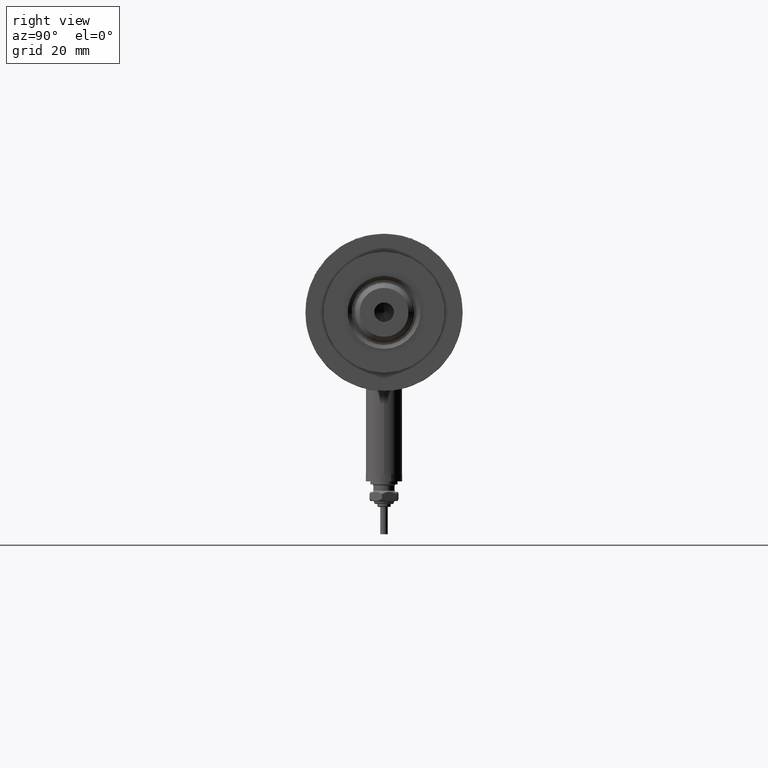
[diagram: clean part render]
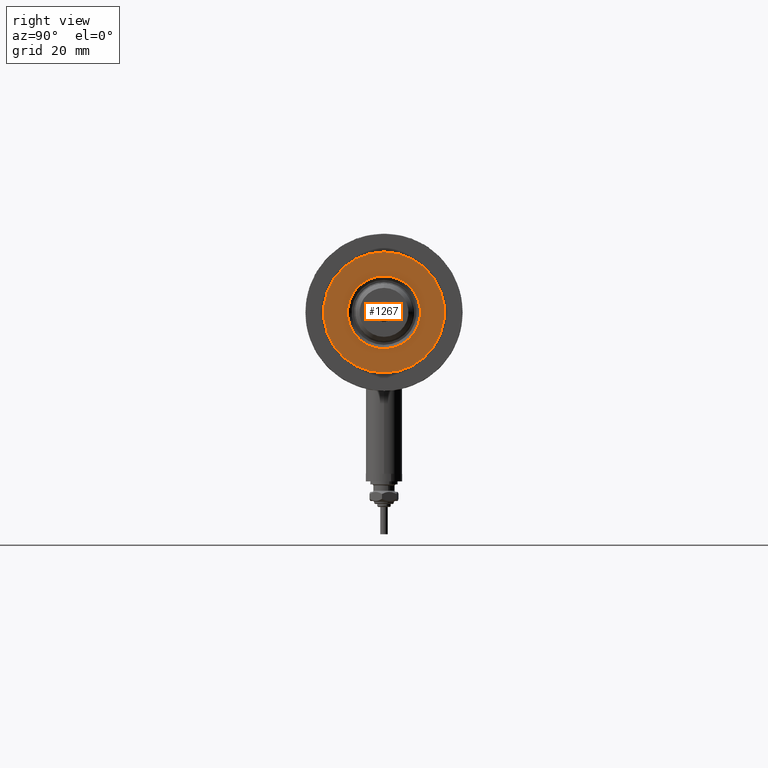
[diagram: same view with one face highlighted and labeled with its STEP entity id]
A machine part, right view. The second image highlights one B-rep face of the part: STEP entity #1267.
In plain terms, the highlighted planar face has unit normal (1, 0, -0).
Its self-contained STEP definition (entity closure, byte-faithful):
#476 = DIRECTION ( 'NONE',  ( -0.000000000000000000, -0.000000000000000000, -1.000000000000000000 ) ) ;
#496 = CARTESIAN_POINT ( 'NONE',  ( 0.000000000000000000, 0.000000000000000000, 33.50000000000000000 ) ) ;
#682 = DIRECTION ( 'NONE',  ( 1.000000000000000000, 0.000000000000000000, 0.000000000000000000 ) ) ;
#760 = EDGE_CURVE ( 'NONE', #2345, #4958, #3474, .T. ) ;
#778 = CARTESIAN_POINT ( 'NONE',  ( 0.000000000000000000, 0.000000000000000000, 33.50000000000000000 ) ) ;
#1166 = CARTESIAN_POINT ( 'NONE',  ( 0.000000000000000000, 0.000000000000000000, 33.50000000000000000 ) ) ;
#1203 = CARTESIAN_POINT ( 'NONE',  ( -19.99999999999999645, 0.000000000000000000, 33.50000000000000000 ) ) ;
#1267 = ADVANCED_FACE ( 'NONE', ( #2788, #5833 ), #3418, .T. ) ;
#1523 = EDGE_LOOP ( 'NONE', ( #6174, #3178 ) ) ;
#1622 = AXIS2_PLACEMENT_3D ( 'NONE', #778, #5166, #4651 ) ;
#1943 = VERTEX_POINT ( 'NONE', #2177 ) ;
#1970 = VERTEX_POINT ( 'NONE', #4113 ) ;
#2019 = EDGE_CURVE ( 'NONE', #1943, #1970, #5727, .T. ) ;
#2073 = AXIS2_PLACEMENT_3D ( 'NONE', #5783, #476, #5844 ) ;
#2109 = CARTESIAN_POINT ( 'NONE',  ( 0.000000000000000000, 0.000000000000000000, 33.50000000000000000 ) ) ;
#2177 = CARTESIAN_POINT ( 'NONE',  ( 12.05000000000000426, 0.000000000000000000, 33.50000000000000000 ) ) ;
#2256 = CIRCLE ( 'NONE', #4706, 19.99999999999999645 ) ;
#2345 = VERTEX_POINT ( 'NONE', #5054 ) ;
#2617 = DIRECTION ( 'NONE',  ( -0.000000000000000000, -0.000000000000000000, -1.000000000000000000 ) ) ;
#2785 = EDGE_CURVE ( 'NONE', #4958, #2345, #2256, .T. ) ;
#2788 = FACE_BOUND ( 'NONE', #6291, .T. ) ;
#2854 = ORIENTED_EDGE ( 'NONE', *, *, #5915, .T. ) ;
#2888 = DIRECTION ( 'NONE',  ( 0.000000000000000000, 0.000000000000000000, 1.000000000000000000 ) ) ;
#2920 = DIRECTION ( 'NONE',  ( 1.000000000000000000, 0.000000000000000000, -0.000000000000000000 ) ) ;
#3178 = ORIENTED_EDGE ( 'NONE', *, *, #760, .T. ) ;
#3418 = PLANE ( 'NONE',  #5202 ) ;
#3474 = CIRCLE ( 'NONE', #1622, 19.99999999999999645 ) ;
#3927 = CIRCLE ( 'NONE', #2073, 12.05000000000000426 ) ;
#4113 = CARTESIAN_POINT ( 'NONE',  ( -12.05000000000000426, 1.475699392972560823E-15, 33.50000000000000000 ) ) ;
#4571 = DIRECTION ( 'NONE',  ( 1.000000000000000000, 0.000000000000000000, 0.000000000000000000 ) ) ;
#4639 = ORIENTED_EDGE ( 'NONE', *, *, #2019, .T. ) ;
#4651 = DIRECTION ( 'NONE',  ( 1.000000000000000000, 0.000000000000000000, 0.000000000000000000 ) ) ;
#4706 = AXIS2_PLACEMENT_3D ( 'NONE', #1166, #5072, #682 ) ;
#4958 = VERTEX_POINT ( 'NONE', #1203 ) ;
#5054 = CARTESIAN_POINT ( 'NONE',  ( 19.99999999999999645, 2.449293598294706119E-15, 33.50000000000000000 ) ) ;
#5072 = DIRECTION ( 'NONE',  ( 0.000000000000000000, 0.000000000000000000, 1.000000000000000000 ) ) ;
#5166 = DIRECTION ( 'NONE',  ( 0.000000000000000000, 0.000000000000000000, 1.000000000000000000 ) ) ;
#5202 = AXIS2_PLACEMENT_3D ( 'NONE', #496, #2888, #2920 ) ;
#5727 = CIRCLE ( 'NONE', #5827, 12.05000000000000426 ) ;
#5783 = CARTESIAN_POINT ( 'NONE',  ( 0.000000000000000000, 0.000000000000000000, 33.50000000000000000 ) ) ;
#5827 = AXIS2_PLACEMENT_3D ( 'NONE', #2109, #2617, #4571 ) ;
#5833 = FACE_OUTER_BOUND ( 'NONE', #1523, .T. ) ;
#5844 = DIRECTION ( 'NONE',  ( 1.000000000000000000, 0.000000000000000000, 0.000000000000000000 ) ) ;
#5915 = EDGE_CURVE ( 'NONE', #1970, #1943, #3927, .T. ) ;
#6174 = ORIENTED_EDGE ( 'NONE', *, *, #2785, .T. ) ;
#6291 = EDGE_LOOP ( 'NONE', ( #4639, #2854 ) ) ;